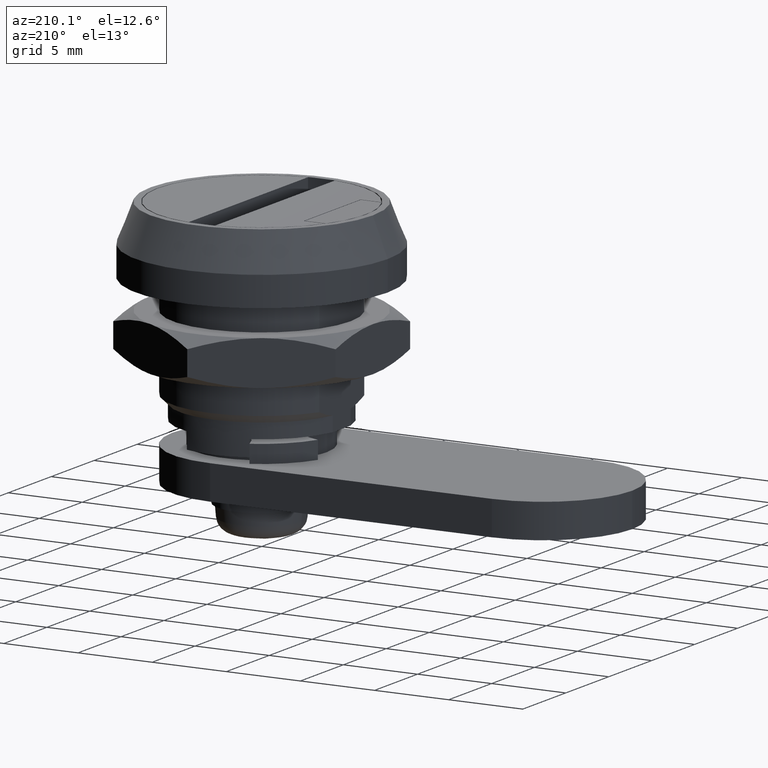
[diagram: clean part render]
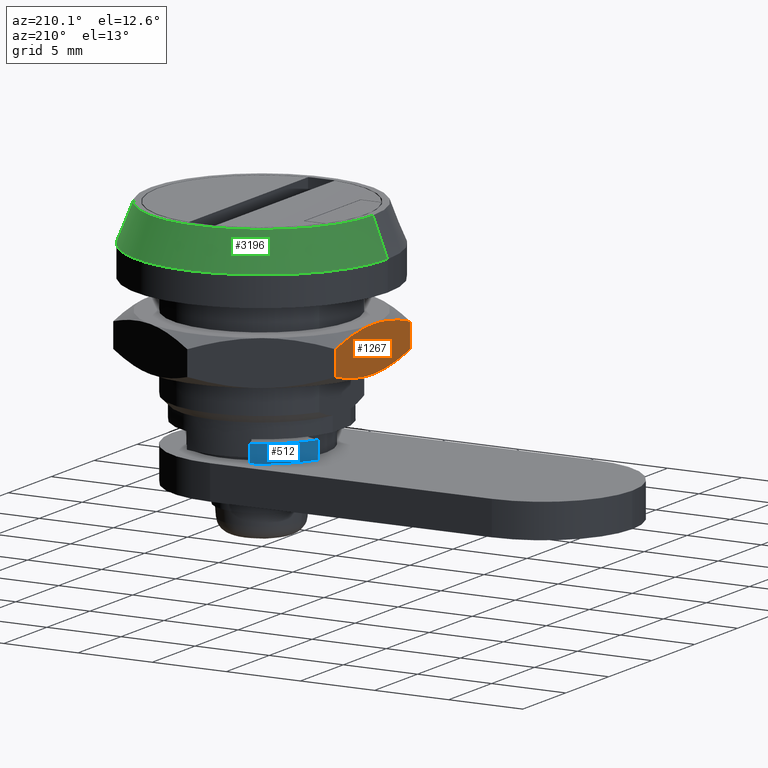
[diagram: same view with three faces highlighted in distinct colors, each labeled with its STEP entity id]
A machine part, auxiliary view with three faces highlighted in distinct colors.
Their STEP definitions:

[orange] entity #1267 — the highlighted planar face has unit normal (1, 0, 0).
#65 = CARTESIAN_POINT ( 'NONE',  ( -7.500000000000000000, -3.625627730962848200, -1.033498445695838900 ) ) ;
#75 = AXIS2_PLACEMENT_3D ( 'NONE', #939, #540, #2620 ) ;
#92 = VERTEX_POINT ( 'NONE', #3109 ) ;
#214 = ORIENTED_EDGE ( 'NONE', *, *, #4482, .F. ) ;
#282 = CARTESIAN_POINT ( 'NONE',  ( -7.500000000000000000, 0.0000000000000000000, -1.500000000000000000 ) ) ;
#302 = CARTESIAN_POINT ( 'NONE',  ( -7.500000000000000000, 0.0000000000000000000, -1.500000000000000000 ) ) ;
#339 = CARTESIAN_POINT ( 'NONE',  ( -7.500000000000000000, 0.7324193981418901700, -1.499999999999999100 ) ) ;
#351 = VERTEX_POINT ( 'NONE', #1786 ) ;
#367 = B_SPLINE_CURVE_WITH_KNOTS ( 'NONE', 3,
 ( #2491, #65, #3553, #1471, #3895, #1815 ),
 .UNSPECIFIED., .F., .F.,
 ( 4, 2, 4 ),
 ( 0.007807341186767623700, 0.009998022186662451600, 0.01218870318655727900 ),
 .UNSPECIFIED. ) ;
#440 = VERTEX_POINT ( 'NONE', #3745 ) ;
#540 = DIRECTION ( 'NONE',  ( 1.000000000000000000, 0.0000000000000000000, -0.0000000000000000000 ) ) ;
#568 = ORIENTED_EDGE ( 'NONE', *, *, #4082, .F. ) ;
#585 = EDGE_CURVE ( 'NONE', #3514, #92, #2760, .T. ) ;
#868 = CARTESIAN_POINT ( 'NONE',  ( -7.500000000000002700, -1.458928022619748100, 1.437068856125804300 ) ) ;
#894 = CARTESIAN_POINT ( 'NONE',  ( -7.500000000000000000, 0.0000000000000000000, 1.500000000000000000 ) ) ;
#901 = EDGE_CURVE ( 'NONE', #1158, #440, #2849, .T. ) ;
#937 = CARTESIAN_POINT ( 'NONE',  ( -7.500000000000000000, 0.0000000000000000000, 1.500000000000000000 ) ) ;
#939 = CARTESIAN_POINT ( 'NONE',  ( -7.500000000000000900, 4.330127018922195400, 1.500000000000000000 ) ) ;
#953 = CARTESIAN_POINT ( 'NONE',  ( -7.500000000000001800, 0.7324193981418913900, 1.499999999999999100 ) ) ;
#996 = CARTESIAN_POINT ( 'NONE',  ( -7.500000000000002700, 2.920623991010120200, 1.200559736270198100 ) ) ;
#1023 = CARTESIAN_POINT ( 'NONE',  ( -7.500000000000000900, 1.474670937600813800, 1.435308495890553300 ) ) ;
#1071 = CARTESIAN_POINT ( 'NONE',  ( -7.500000000000000900, 4.330127018922195400, 0.8301270189222010900 ) ) ;
#1082 = CARTESIAN_POINT ( 'NONE',  ( -7.500000000000000000, 3.629919818345974700, 1.032259426792796000 ) ) ;
#1089 = CARTESIAN_POINT ( 'NONE',  ( -7.500000000000000900, -4.330127018922196300, -0.8301270189222009800 ) ) ;
#1090 = CARTESIAN_POINT ( 'NONE',  ( -7.500000000000000900, 4.330127018922195400, 1.500000000000000000 ) ) ;
#1158 = VERTEX_POINT ( 'NONE', #1524 ) ;
#1169 = ORIENTED_EDGE ( 'NONE', *, *, #585, .F. ) ;
#1212 = CARTESIAN_POINT ( 'NONE',  ( -7.500000000000001800, -3.625627730962847300, 1.033498445695839400 ) ) ;
#1245 = CARTESIAN_POINT ( 'NONE',  ( -7.500000000000000900, -4.330127018922196300, 1.500000000000000000 ) ) ;
#1267 = ADVANCED_FACE ( 'NONE', ( #4148 ), #2695, .F. ) ;
#1301 = VECTOR ( 'NONE', #3540, 1000.000000000000000 ) ;
#1408 = LINE ( 'NONE', #1090, #1301 ) ;
#1441 = CARTESIAN_POINT ( 'NONE',  ( -7.500000000000002700, 1.474670937600813400, -1.435308495890554600 ) ) ;
#1471 = CARTESIAN_POINT ( 'NONE',  ( -7.500000000000000900, -1.458928022619749900, -1.437068856125803400 ) ) ;
#1524 = CARTESIAN_POINT ( 'NONE',  ( -7.500000000000000900, 4.330127018922195400, 0.8301270189222010900 ) ) ;
#1601 = DIRECTION ( 'NONE',  ( -0.0000000000000000000, -0.0000000000000000000, -1.000000000000000000 ) ) ;
#1786 = CARTESIAN_POINT ( 'NONE',  ( -7.500000000000000900, -4.330127018922196300, 0.8301270189222009800 ) ) ;
#1795 = ORIENTED_EDGE ( 'NONE', *, *, #4392, .F. ) ;
#1815 = CARTESIAN_POINT ( 'NONE',  ( -7.500000000000000000, 0.0000000000000000000, -1.500000000000000000 ) ) ;
#2032 = EDGE_LOOP ( 'NONE', ( #3820, #4150, #1169, #568, #214, #1795 ) ) ;
#2267 = LINE ( 'NONE', #1245, #4122 ) ;
#2491 = CARTESIAN_POINT ( 'NONE',  ( -7.500000000000000900, -4.330127018922196300, -0.8301270189222009800 ) ) ;
#2599 = CARTESIAN_POINT ( 'NONE',  ( -7.500000000000000000, -0.7319537889311639200, 1.499999999999999800 ) ) ;
#2620 = DIRECTION ( 'NONE',  ( -0.0000000000000000000, 0.0000000000000000000, -1.000000000000000000 ) ) ;
#2695 = PLANE ( 'NONE',  #75 ) ;
#2760 = B_SPLINE_CURVE_WITH_KNOTS ( 'NONE', 3,
 ( #282, #339, #1441, #3208, #3129, #3156 ),
 .UNSPECIFIED., .F., .F.,
 ( 4, 2, 4 ),
 ( 0.01218870318655727900, 0.01438077771875800900, 0.01657285225095873900 ),
 .UNSPECIFIED. ) ;
#2849 = B_SPLINE_CURVE_WITH_KNOTS ( 'NONE', 3,
 ( #1071, #1082, #996, #1023, #953, #894 ),
 .UNSPECIFIED., .F., .F.,
 ( 4, 2, 4 ),
 ( 0.01915191548069842400, 0.02134611949813165800, 0.02354032351556489100 ),
 .UNSPECIFIED. ) ;
#3081 = B_SPLINE_CURVE_WITH_KNOTS ( 'NONE', 3,
 ( #937, #2599, #868, #3318, #1212, #3651 ),
 .UNSPECIFIED., .F., .F.,
 ( 4, 2, 4 ),
 ( 0.02354032351556489100, 0.02573313264694880600, 0.02792594177833272400 ),
 .UNSPECIFIED. ) ;
#3109 = CARTESIAN_POINT ( 'NONE',  ( -7.500000000000000900, 4.330127018922195400, -0.8301270189222016400 ) ) ;
#3129 = CARTESIAN_POINT ( 'NONE',  ( -7.500000000000001800, 3.629919818345974700, -1.032259426792796300 ) ) ;
#3156 = CARTESIAN_POINT ( 'NONE',  ( -7.500000000000000900, 4.330127018922195400, -0.8301270189222016400 ) ) ;
#3208 = CARTESIAN_POINT ( 'NONE',  ( -7.500000000000000900, 2.920623991010120200, -1.200559736270198700 ) ) ;
#3318 = CARTESIAN_POINT ( 'NONE',  ( -7.500000000000000900, -2.904391427413806100, 1.203973157322346700 ) ) ;
#3514 = VERTEX_POINT ( 'NONE', #302 ) ;
#3540 = DIRECTION ( 'NONE',  ( -0.0000000000000000000, -0.0000000000000000000, -1.000000000000000000 ) ) ;
#3553 = CARTESIAN_POINT ( 'NONE',  ( -7.500000000000002700, -2.904391427413809200, -1.203973157322346700 ) ) ;
#3638 = EDGE_CURVE ( 'NONE', #1158, #92, #1408, .T. ) ;
#3651 = CARTESIAN_POINT ( 'NONE',  ( -7.500000000000000900, -4.330127018922196300, 0.8301270189222009800 ) ) ;
#3745 = CARTESIAN_POINT ( 'NONE',  ( -7.500000000000000000, 0.0000000000000000000, 1.500000000000000000 ) ) ;
#3820 = ORIENTED_EDGE ( 'NONE', *, *, #901, .F. ) ;
#3895 = CARTESIAN_POINT ( 'NONE',  ( -7.500000000000001800, -0.7319537889311656900, -1.499999999999999800 ) ) ;
#4054 = VERTEX_POINT ( 'NONE', #1089 ) ;
#4082 = EDGE_CURVE ( 'NONE', #4054, #3514, #367, .T. ) ;
#4122 = VECTOR ( 'NONE', #1601, 1000.000000000000000 ) ;
#4148 = FACE_OUTER_BOUND ( 'NONE', #2032, .T. ) ;
#4150 = ORIENTED_EDGE ( 'NONE', *, *, #3638, .T. ) ;
#4392 = EDGE_CURVE ( 'NONE', #440, #351, #3081, .T. ) ;
#4482 = EDGE_CURVE ( 'NONE', #351, #4054, #2267, .T. ) ;

[blue] entity #512 — the highlighted cylindrical surface (partial cylindrical patch) has radius 5.4 mm, axis along (-0, -0, -1).
#80 = DIRECTION ( 'NONE',  ( 1.000000000000000000, 0.0000000000000000000, 0.0000000000000000000 ) ) ;
#195 = VERTEX_POINT ( 'NONE', #4423 ) ;
#297 = DIRECTION ( 'NONE',  ( -1.000000000000000000, 0.0000000000000000000, 0.0000000000000000000 ) ) ;
#313 = CARTESIAN_POINT ( 'NONE',  ( 0.0000000000000000000, 0.0000000000000000000, 1.200000000000000000 ) ) ;
#326 = DIRECTION ( 'NONE',  ( -0.0000000000000000000, -0.0000000000000000000, -1.000000000000000000 ) ) ;
#352 = VERTEX_POINT ( 'NONE', #2970 ) ;
#512 = ADVANCED_FACE ( 'NONE', ( #1540 ), #3297, .T. ) ;
#691 = DIRECTION ( 'NONE',  ( 0.0000000000000000000, 0.0000000000000000000, 1.000000000000000000 ) ) ;
#1162 = VERTEX_POINT ( 'NONE', #3289 ) ;
#1351 = VECTOR ( 'NONE', #4099, 1000.000000000000000 ) ;
#1470 = CIRCLE ( 'NONE', #3836, 5.399999999999783600 ) ;
#1540 = FACE_OUTER_BOUND ( 'NONE', #2501, .T. ) ;
#1611 = DIRECTION ( 'NONE',  ( -0.0000000000000000000, -0.0000000000000000000, -1.000000000000000000 ) ) ;
#1671 = CARTESIAN_POINT ( 'NONE',  ( -2.066490534772169200, 4.988949475560430900, 1.200000000000000000 ) ) ;
#1746 = DIRECTION ( 'NONE',  ( 0.0000000000000000000, 0.0000000000000000000, 1.000000000000000000 ) ) ;
#1761 = ORIENTED_EDGE ( 'NONE', *, *, #2618, .F. ) ;
#1808 = AXIS2_PLACEMENT_3D ( 'NONE', #313, #326, #297 ) ;
#1873 = ORIENTED_EDGE ( 'NONE', *, *, #2976, .F. ) ;
#2012 = EDGE_CURVE ( 'NONE', #195, #1162, #3394, .T. ) ;
#2091 = ORIENTED_EDGE ( 'NONE', *, *, #2012, .T. ) ;
#2111 = VECTOR ( 'NONE', #1611, 1000.000000000000000 ) ;
#2501 = EDGE_LOOP ( 'NONE', ( #2091, #1873, #1761, #3153 ) ) ;
#2618 = EDGE_CURVE ( 'NONE', #3873, #352, #1470, .T. ) ;
#2970 = CARTESIAN_POINT ( 'NONE',  ( -4.988949475560387400, 2.066490534772273500, 1.200000000000000000 ) ) ;
#2976 = EDGE_CURVE ( 'NONE', #352, #1162, #3963, .T. ) ;
#3007 = CARTESIAN_POINT ( 'NONE',  ( -4.988949475560387400, 2.066490534772273500, 1.200000000000000000 ) ) ;
#3153 = ORIENTED_EDGE ( 'NONE', *, *, #3901, .T. ) ;
#3199 = CARTESIAN_POINT ( 'NONE',  ( 0.0000000000000000000, 0.0000000000000000000, 0.0000000000000000000 ) ) ;
#3216 = LINE ( 'NONE', #3434, #1351 ) ;
#3289 = CARTESIAN_POINT ( 'NONE',  ( -4.988949475560387400, 2.066490534772273500, 0.0000000000000000000 ) ) ;
#3297 = CYLINDRICAL_SURFACE ( 'NONE', #1808, 5.399999999999783600 ) ;
#3394 = CIRCLE ( 'NONE', #4103, 5.399999999999783600 ) ;
#3434 = CARTESIAN_POINT ( 'NONE',  ( -2.066490534772169200, 4.988949475560430900, 1.200000000000000000 ) ) ;
#3823 = CARTESIAN_POINT ( 'NONE',  ( 0.0000000000000000000, 0.0000000000000000000, 1.200000000000000000 ) ) ;
#3836 = AXIS2_PLACEMENT_3D ( 'NONE', #3823, #1746, #4178 ) ;
#3873 = VERTEX_POINT ( 'NONE', #1671 ) ;
#3901 = EDGE_CURVE ( 'NONE', #3873, #195, #3216, .T. ) ;
#3963 = LINE ( 'NONE', #3007, #2111 ) ;
#4099 = DIRECTION ( 'NONE',  ( -0.0000000000000000000, -0.0000000000000000000, -1.000000000000000000 ) ) ;
#4103 = AXIS2_PLACEMENT_3D ( 'NONE', #3199, #691, #80 ) ;
#4178 = DIRECTION ( 'NONE',  ( 1.000000000000000000, 0.0000000000000000000, 0.0000000000000000000 ) ) ;
#4423 = CARTESIAN_POINT ( 'NONE',  ( -2.066490534772169200, 4.988949475560430900, 0.0000000000000000000 ) ) ;

[green] entity #3196 — the highlighted conical surface has half-angle 21.801 deg.
#163 = CIRCLE ( 'NONE', #4205, 8.500000000000000000 ) ;
#168 = DIRECTION ( 'NONE',  ( 0.0000000000000000000, 0.0000000000000000000, 1.000000000000000000 ) ) ;
#414 = ORIENTED_EDGE ( 'NONE', *, *, #576, .T. ) ;
#422 = FACE_OUTER_BOUND ( 'NONE', #2356, .T. ) ;
#424 = EDGE_CURVE ( 'NONE', #448, #1908, #2085, .T. ) ;
#448 = VERTEX_POINT ( 'NONE', #2807 ) ;
#504 = LINE ( 'NONE', #2101, #3983 ) ;
#524 = CARTESIAN_POINT ( 'NONE',  ( 0.0000000000000000000, 0.0000000000000000000, 4.500000000000000900 ) ) ;
#576 = EDGE_CURVE ( 'NONE', #1607, #4091, #504, .T. ) ;
#633 = DIRECTION ( 'NONE',  ( -0.3713906763541039400, 0.0000000000000000000, -0.9284766908852591900 ) ) ;
#1119 = EDGE_CURVE ( 'NONE', #4091, #1908, #163, .T. ) ;
#1166 = CARTESIAN_POINT ( 'NONE',  ( 7.500000000000000000, 4.592425496802574000E-016, 4.500000000000000900 ) ) ;
#1272 = EDGE_CURVE ( 'NONE', #1607, #448, #3234, .T. ) ;
#1607 = VERTEX_POINT ( 'NONE', #1166 ) ;
#1876 = CARTESIAN_POINT ( 'NONE',  ( 0.0000000000000000000, 0.0000000000000000000, 4.500000000000000900 ) ) ;
#1888 = ORIENTED_EDGE ( 'NONE', *, *, #1272, .F. ) ;
#1908 = VERTEX_POINT ( 'NONE', #3775 ) ;
#1951 = AXIS2_PLACEMENT_3D ( 'NONE', #1876, #3961, #3281 ) ;
#2062 = CONICAL_SURFACE ( 'NONE', #1951, 7.500000000000000000, 0.3805063771123651200 ) ;
#2085 = LINE ( 'NONE', #4262, #3935 ) ;
#2101 = CARTESIAN_POINT ( 'NONE',  ( 7.500000000000000000, 9.184850993605147900E-016, 4.500000000000000900 ) ) ;
#2356 = EDGE_LOOP ( 'NONE', ( #1888, #414, #3321, #4027 ) ) ;
#2807 = CARTESIAN_POINT ( 'NONE',  ( -7.500000000000000000, 4.592425496802574000E-016, 4.500000000000000900 ) ) ;
#2986 = DIRECTION ( 'NONE',  ( 1.000000000000000000, 0.0000000000000000000, 0.0000000000000000000 ) ) ;
#3182 = DIRECTION ( 'NONE',  ( -1.000000000000000000, 0.0000000000000000000, 0.0000000000000000000 ) ) ;
#3196 = ADVANCED_FACE ( 'NONE', ( #422 ), #2062, .T. ) ;
#3234 = CIRCLE ( 'NONE', #4356, 7.500000000000000000 ) ;
#3281 = DIRECTION ( 'NONE',  ( -1.000000000000000000, 0.0000000000000000000, 0.0000000000000000000 ) ) ;
#3302 = CARTESIAN_POINT ( 'NONE',  ( 0.0000000000000000000, 0.0000000000000000000, 2.000000000000000000 ) ) ;
#3321 = ORIENTED_EDGE ( 'NONE', *, *, #1119, .T. ) ;
#3508 = DIRECTION ( 'NONE',  ( 0.3713906763541039400, 4.548224030302240200E-017, -0.9284766908852591900 ) ) ;
#3754 = DIRECTION ( 'NONE',  ( 0.0000000000000000000, 0.0000000000000000000, 1.000000000000000000 ) ) ;
#3775 = CARTESIAN_POINT ( 'NONE',  ( -8.500000000000000000, 0.0000000000000000000, 2.000000000000000000 ) ) ;
#3935 = VECTOR ( 'NONE', #633, 1000.000000000000200 ) ;
#3961 = DIRECTION ( 'NONE',  ( -0.0000000000000000000, -0.0000000000000000000, -1.000000000000000000 ) ) ;
#3983 = VECTOR ( 'NONE', #3508, 1000.000000000000200 ) ;
#4027 = ORIENTED_EDGE ( 'NONE', *, *, #424, .F. ) ;
#4091 = VERTEX_POINT ( 'NONE', #4236 ) ;
#4205 = AXIS2_PLACEMENT_3D ( 'NONE', #3302, #3754, #3182 ) ;
#4236 = CARTESIAN_POINT ( 'NONE',  ( 8.500000000000000000, 1.040949779275250100E-015, 2.000000000000000000 ) ) ;
#4262 = CARTESIAN_POINT ( 'NONE',  ( -7.500000000000000000, 0.0000000000000000000, 4.500000000000000900 ) ) ;
#4356 = AXIS2_PLACEMENT_3D ( 'NONE', #524, #168, #2986 ) ;